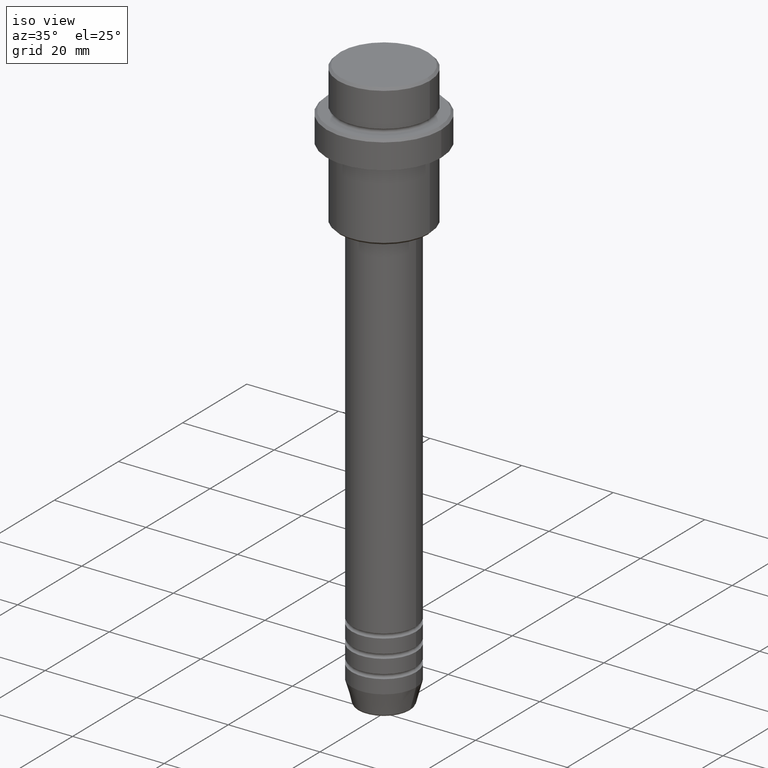
[diagram: clean part render]
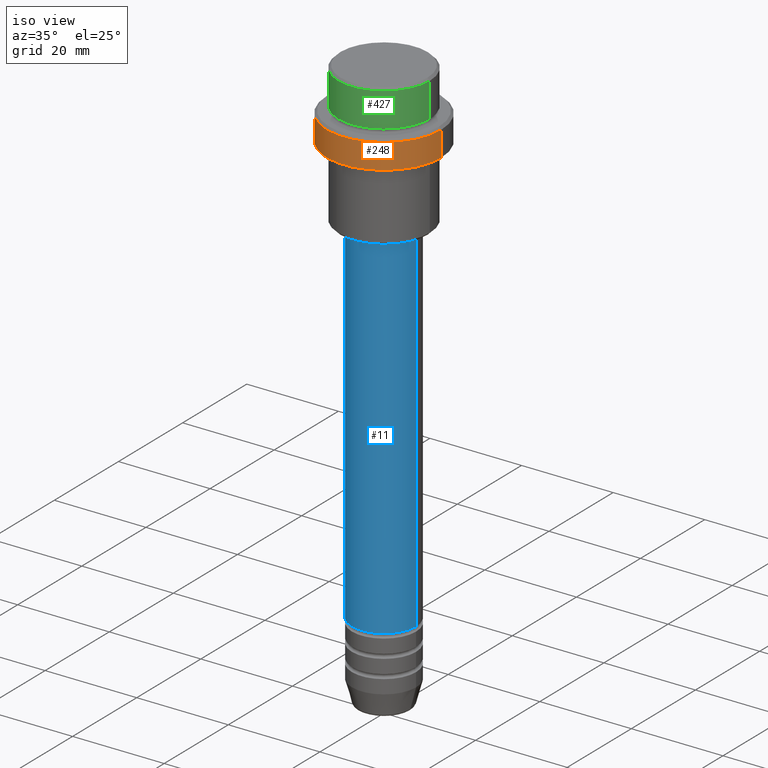
[diagram: same view with three faces highlighted in distinct colors, each labeled with its STEP entity id]
A machine part, iso view with three faces highlighted in distinct colors.
Their STEP definitions:

[orange] entity #248 — the highlighted cylindrical surface (partial cylindrical patch) has radius 12.5 mm, axis along (-0, -0, 1).
#1 = CIRCLE ( 'NONE', #464, 12.50000000000000000 ) ;
#63 = DIRECTION ( 'NONE',  ( 1.000000000000000000, 0.000000000000000000, 0.000000000000000000 ) ) ;
#76 = ORIENTED_EDGE ( 'NONE', *, *, #1171, .F. ) ;
#81 = EDGE_LOOP ( 'NONE', ( #76, #800, #892, #779 ) ) ;
#83 = CARTESIAN_POINT ( 'NONE',  ( -12.50000000000000000, 1.530808498934191521E-15, -9.499999999999992895 ) ) ;
#113 = VERTEX_POINT ( 'NONE', #230 ) ;
#144 = DIRECTION ( 'NONE',  ( -0.000000000000000000, -0.000000000000000000, 1.000000000000000000 ) ) ;
#150 = CARTESIAN_POINT ( 'NONE',  ( 12.50000000000000000, 0.000000000000000000, 0.000000000000000000 ) ) ;
#166 = CARTESIAN_POINT ( 'NONE',  ( 0.000000000000000000, 0.000000000000000000, 0.000000000000000000 ) ) ;
#168 = DIRECTION ( 'NONE',  ( 1.000000000000000000, 0.000000000000000000, 0.000000000000000000 ) ) ;
#211 = CIRCLE ( 'NONE', #351, 12.50000000000000000 ) ;
#216 = VERTEX_POINT ( 'NONE', #313 ) ;
#230 = CARTESIAN_POINT ( 'NONE',  ( 12.50000000000000000, 0.000000000000000000, -15.00000000000000178 ) ) ;
#248 = ADVANCED_FACE ( 'NONE', ( #381 ), #718, .T. ) ;
#313 = CARTESIAN_POINT ( 'NONE',  ( -12.50000000000000000, 1.530808498934191521E-15, -15.00000000000000178 ) ) ;
#351 = AXIS2_PLACEMENT_3D ( 'NONE', #620, #738, #63 ) ;
#356 = DIRECTION ( 'NONE',  ( -0.000000000000000000, -0.000000000000000000, 1.000000000000000000 ) ) ;
#380 = VERTEX_POINT ( 'NONE', #1351 ) ;
#381 = FACE_OUTER_BOUND ( 'NONE', #81, .T. ) ;
#415 = VECTOR ( 'NONE', #144, 1000.000000000000000 ) ;
#464 = AXIS2_PLACEMENT_3D ( 'NONE', #1278, #1068, #168 ) ;
#620 = CARTESIAN_POINT ( 'NONE',  ( 0.000000000000000000, 0.000000000000000000, -15.00000000000000178 ) ) ;
#672 = DIRECTION ( 'NONE',  ( 1.000000000000000000, 0.000000000000000000, 0.000000000000000000 ) ) ;
#690 = LINE ( 'NONE', #700, #902 ) ;
#700 = CARTESIAN_POINT ( 'NONE',  ( -12.50000000000000000, 1.530808498934191521E-15, 0.000000000000000000 ) ) ;
#718 = CYLINDRICAL_SURFACE ( 'NONE', #897, 12.50000000000000000 ) ;
#732 = EDGE_CURVE ( 'NONE', #113, #380, #1008, .T. ) ;
#738 = DIRECTION ( 'NONE',  ( -0.000000000000000000, -0.000000000000000000, 1.000000000000000000 ) ) ;
#779 = ORIENTED_EDGE ( 'NONE', *, *, #859, .T. ) ;
#800 = ORIENTED_EDGE ( 'NONE', *, *, #1337, .T. ) ;
#859 = EDGE_CURVE ( 'NONE', #380, #1290, #1, .T. ) ;
#892 = ORIENTED_EDGE ( 'NONE', *, *, #732, .T. ) ;
#897 = AXIS2_PLACEMENT_3D ( 'NONE', #166, #1203, #672 ) ;
#902 = VECTOR ( 'NONE', #356, 1000.000000000000000 ) ;
#1008 = LINE ( 'NONE', #150, #415 ) ;
#1068 = DIRECTION ( 'NONE',  ( 0.000000000000000000, 0.000000000000000000, -1.000000000000000000 ) ) ;
#1171 = EDGE_CURVE ( 'NONE', #216, #1290, #690, .T. ) ;
#1203 = DIRECTION ( 'NONE',  ( -0.000000000000000000, -0.000000000000000000, 1.000000000000000000 ) ) ;
#1278 = CARTESIAN_POINT ( 'NONE',  ( 0.000000000000000000, 0.000000000000000000, -9.499999999999992895 ) ) ;
#1290 = VERTEX_POINT ( 'NONE', #83 ) ;
#1337 = EDGE_CURVE ( 'NONE', #216, #113, #211, .T. ) ;
#1351 = CARTESIAN_POINT ( 'NONE',  ( 12.50000000000000000, 0.000000000000000000, -9.499999999999992895 ) ) ;

[blue] entity #11 — the highlighted cylindrical surface (partial cylindrical patch) has radius 7 mm, axis along (-0, -0, 1).
#11 = ADVANCED_FACE ( 'NONE', ( #1228 ), #33, .T. ) ;
#22 = VECTOR ( 'NONE', #1244, 1000.000000000000000 ) ;
#33 = CYLINDRICAL_SURFACE ( 'NONE', #1099, 7.000000000000000000 ) ;
#263 = VERTEX_POINT ( 'NONE', #448 ) ;
#298 = AXIS2_PLACEMENT_3D ( 'NONE', #784, #1194, #354 ) ;
#319 = AXIS2_PLACEMENT_3D ( 'NONE', #899, #1314, #429 ) ;
#326 = EDGE_CURVE ( 'NONE', #337, #1160, #1245, .T. ) ;
#334 = ORIENTED_EDGE ( 'NONE', *, *, #602, .F. ) ;
#337 = VERTEX_POINT ( 'NONE', #378 ) ;
#347 = ORIENTED_EDGE ( 'NONE', *, *, #756, .F. ) ;
#354 = DIRECTION ( 'NONE',  ( 1.000000000000000000, 0.000000000000000000, 0.000000000000000000 ) ) ;
#362 = CARTESIAN_POINT ( 'NONE',  ( 0.000000000000000000, 0.000000000000000000, 0.000000000000000000 ) ) ;
#378 = CARTESIAN_POINT ( 'NONE',  ( 7.000000000000000000, 0.000000000000000000, -108.9999999999998721 ) ) ;
#429 = DIRECTION ( 'NONE',  ( 1.000000000000000000, 0.000000000000000000, 0.000000000000000000 ) ) ;
#448 = CARTESIAN_POINT ( 'NONE',  ( -7.000000000000000000, 8.572527594031473190E-16, -108.9999999999998721 ) ) ;
#477 = CARTESIAN_POINT ( 'NONE',  ( 7.000000000000000000, 0.000000000000000000, 0.000000000000000000 ) ) ;
#481 = LINE ( 'NONE', #813, #22 ) ;
#486 = CIRCLE ( 'NONE', #298, 7.000000000000000000 ) ;
#546 = ORIENTED_EDGE ( 'NONE', *, *, #680, .T. ) ;
#577 = CARTESIAN_POINT ( 'NONE',  ( 7.000000000000000000, 0.000000000000000000, -31.99999999999997868 ) ) ;
#602 = EDGE_CURVE ( 'NONE', #793, #1160, #486, .T. ) ;
#680 = EDGE_CURVE ( 'NONE', #263, #337, #965, .T. ) ;
#702 = DIRECTION ( 'NONE',  ( 1.000000000000000000, 0.000000000000000000, 0.000000000000000000 ) ) ;
#756 = EDGE_CURVE ( 'NONE', #263, #793, #481, .T. ) ;
#784 = CARTESIAN_POINT ( 'NONE',  ( 0.000000000000000000, 0.000000000000000000, -31.99999999999997868 ) ) ;
#793 = VERTEX_POINT ( 'NONE', #1117 ) ;
#813 = CARTESIAN_POINT ( 'NONE',  ( -7.000000000000000000, 8.572527594031473190E-16, 0.000000000000000000 ) ) ;
#899 = CARTESIAN_POINT ( 'NONE',  ( 0.000000000000000000, 0.000000000000000000, -108.9999999999998721 ) ) ;
#930 = EDGE_LOOP ( 'NONE', ( #347, #546, #1288, #334 ) ) ;
#965 = CIRCLE ( 'NONE', #319, 7.000000000000000000 ) ;
#1071 = VECTOR ( 'NONE', #1356, 1000.000000000000000 ) ;
#1099 = AXIS2_PLACEMENT_3D ( 'NONE', #362, #1239, #702 ) ;
#1117 = CARTESIAN_POINT ( 'NONE',  ( -7.000000000000000000, 8.572527594031473190E-16, -31.99999999999997868 ) ) ;
#1160 = VERTEX_POINT ( 'NONE', #577 ) ;
#1194 = DIRECTION ( 'NONE',  ( -0.000000000000000000, -0.000000000000000000, 1.000000000000000000 ) ) ;
#1228 = FACE_OUTER_BOUND ( 'NONE', #930, .T. ) ;
#1239 = DIRECTION ( 'NONE',  ( -0.000000000000000000, -0.000000000000000000, 1.000000000000000000 ) ) ;
#1244 = DIRECTION ( 'NONE',  ( -0.000000000000000000, -0.000000000000000000, 1.000000000000000000 ) ) ;
#1245 = LINE ( 'NONE', #477, #1071 ) ;
#1288 = ORIENTED_EDGE ( 'NONE', *, *, #326, .T. ) ;
#1314 = DIRECTION ( 'NONE',  ( -0.000000000000000000, -0.000000000000000000, 1.000000000000000000 ) ) ;
#1356 = DIRECTION ( 'NONE',  ( -0.000000000000000000, -0.000000000000000000, 1.000000000000000000 ) ) ;

[green] entity #427 — the highlighted cylindrical surface (partial cylindrical patch) has radius 10 mm, axis along (-0, -0, 1).
#17 = DIRECTION ( 'NONE',  ( 1.000000000000000000, 0.000000000000000000, 0.000000000000000000 ) ) ;
#24 = EDGE_CURVE ( 'NONE', #868, #1318, #489, .T. ) ;
#89 = AXIS2_PLACEMENT_3D ( 'NONE', #182, #400, #1159 ) ;
#128 = EDGE_LOOP ( 'NONE', ( #693, #592, #431, #1059 ) ) ;
#175 = LINE ( 'NONE', #205, #412 ) ;
#182 = CARTESIAN_POINT ( 'NONE',  ( 0.000000000000000000, 0.000000000000000000, -0.4999999999999831246 ) ) ;
#192 = DIRECTION ( 'NONE',  ( -0.000000000000000000, -0.000000000000000000, 1.000000000000000000 ) ) ;
#205 = CARTESIAN_POINT ( 'NONE',  ( 9.999999999999998224, 0.000000000000000000, 0.000000000000000000 ) ) ;
#210 = CARTESIAN_POINT ( 'NONE',  ( 9.999999999999998224, 0.000000000000000000, -0.4999999999999831246 ) ) ;
#240 = VERTEX_POINT ( 'NONE', #210 ) ;
#311 = CYLINDRICAL_SURFACE ( 'NONE', #1213, 9.999999999999998224 ) ;
#400 = DIRECTION ( 'NONE',  ( 0.000000000000000000, 0.000000000000000000, -1.000000000000000000 ) ) ;
#412 = VECTOR ( 'NONE', #517, 1000.000000000000000 ) ;
#414 = CARTESIAN_POINT ( 'NONE',  ( -9.999999999999998224, 1.224646799147353059E-15, -7.999999999999998224 ) ) ;
#427 = ADVANCED_FACE ( 'NONE', ( #1179 ), #311, .T. ) ;
#430 = EDGE_CURVE ( 'NONE', #240, #977, #604, .T. ) ;
#431 = ORIENTED_EDGE ( 'NONE', *, *, #504, .T. ) ;
#489 = CIRCLE ( 'NONE', #988, 9.999999999999998224 ) ;
#504 = EDGE_CURVE ( 'NONE', #1318, #240, #175, .T. ) ;
#517 = DIRECTION ( 'NONE',  ( -0.000000000000000000, -0.000000000000000000, 1.000000000000000000 ) ) ;
#592 = ORIENTED_EDGE ( 'NONE', *, *, #24, .T. ) ;
#604 = CIRCLE ( 'NONE', #89, 9.999999999999998224 ) ;
#633 = DIRECTION ( 'NONE',  ( -0.000000000000000000, -0.000000000000000000, 1.000000000000000000 ) ) ;
#641 = CARTESIAN_POINT ( 'NONE',  ( 9.999999999999998224, 0.000000000000000000, -7.999999999999998224 ) ) ;
#693 = ORIENTED_EDGE ( 'NONE', *, *, #1354, .F. ) ;
#727 = CARTESIAN_POINT ( 'NONE',  ( -9.999999999999998224, 1.224646799147353059E-15, -0.4999999999999831246 ) ) ;
#743 = DIRECTION ( 'NONE',  ( 1.000000000000000000, 0.000000000000000000, 0.000000000000000000 ) ) ;
#745 = LINE ( 'NONE', #831, #1330 ) ;
#777 = CARTESIAN_POINT ( 'NONE',  ( 0.000000000000000000, 0.000000000000000000, -7.999999999999998224 ) ) ;
#791 = DIRECTION ( 'NONE',  ( -0.000000000000000000, -0.000000000000000000, 1.000000000000000000 ) ) ;
#831 = CARTESIAN_POINT ( 'NONE',  ( -9.999999999999998224, 1.224646799147353059E-15, 0.000000000000000000 ) ) ;
#868 = VERTEX_POINT ( 'NONE', #414 ) ;
#977 = VERTEX_POINT ( 'NONE', #727 ) ;
#988 = AXIS2_PLACEMENT_3D ( 'NONE', #777, #791, #17 ) ;
#1059 = ORIENTED_EDGE ( 'NONE', *, *, #430, .T. ) ;
#1159 = DIRECTION ( 'NONE',  ( 1.000000000000000000, 0.000000000000000000, 0.000000000000000000 ) ) ;
#1179 = FACE_OUTER_BOUND ( 'NONE', #128, .T. ) ;
#1213 = AXIS2_PLACEMENT_3D ( 'NONE', #1381, #633, #743 ) ;
#1318 = VERTEX_POINT ( 'NONE', #641 ) ;
#1330 = VECTOR ( 'NONE', #192, 1000.000000000000000 ) ;
#1354 = EDGE_CURVE ( 'NONE', #868, #977, #745, .T. ) ;
#1381 = CARTESIAN_POINT ( 'NONE',  ( 0.000000000000000000, 0.000000000000000000, 0.000000000000000000 ) ) ;